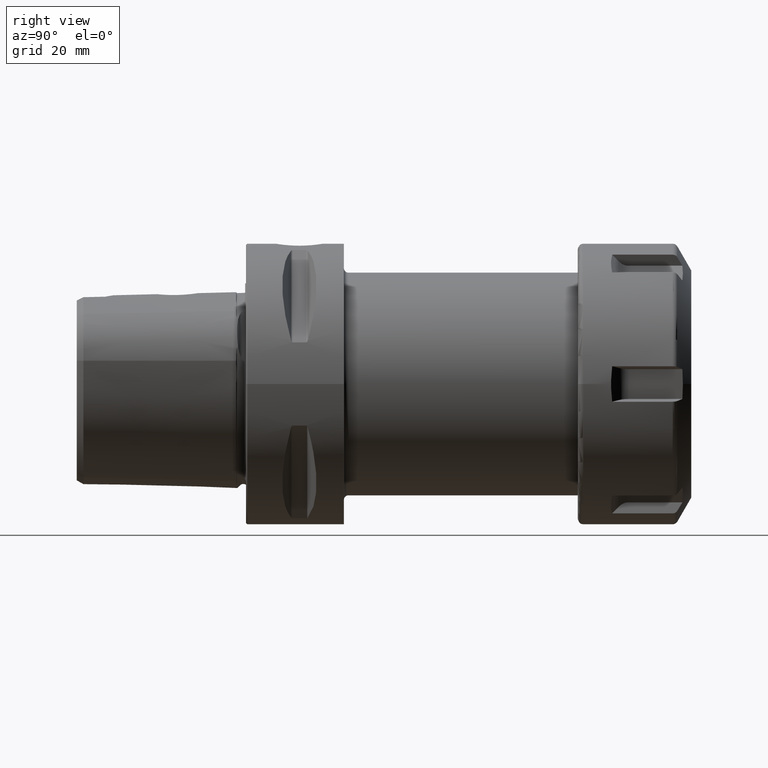
[diagram: clean part render]
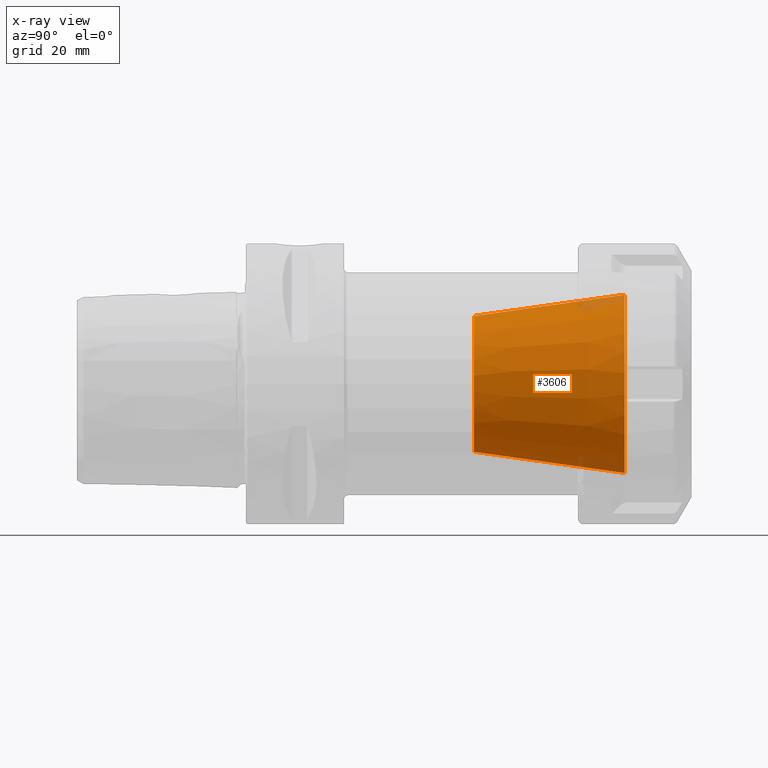
[diagram: x-ray — body ghosted, one internal face saturated and labeled with its STEP entity id]
A machine part, right view, then the same camera in x-ray: the body is ghosted and one INTERNAL B-rep face — a face not visible from any outside direction — is saturated and labeled: STEP entity #3606.
In plain terms, the highlighted conical surface has half-angle 8 deg.
Its self-contained STEP definition (entity closure, byte-faithful):
#1637=CARTESIAN_POINT('',(0.E0,8.5E1,0.E0));
#1638=DIRECTION('',(0.E0,-1.E0,0.E0));
#1639=DIRECTION('',(0.E0,0.E0,-1.E0));
#1640=AXIS2_PLACEMENT_3D('',#1637,#1638,#1639);
#1647=CARTESIAN_POINT('',(0.E0,5.120199381868E1,0.E0));
#1648=DIRECTION('',(0.E0,-1.E0,0.E0));
#1649=DIRECTION('',(0.E0,0.E0,-1.E0));
#1650=AXIS2_PLACEMENT_3D('',#1647,#1648,#1649);
#1652=DIRECTION('',(0.E0,9.902680687416E-1,-1.391731009601E-1));
#1653=VECTOR('',#1652,3.413015853806E1);
#1654=CARTESIAN_POINT('',(0.E0,5.120199381868E1,-1.525E1));
#1655=LINE('',#1654,#1653);
#1661=DIRECTION('',(0.E0,9.902680687416E-1,1.391731009601E-1));
#1662=VECTOR('',#1661,3.413015853806E1);
#1663=CARTESIAN_POINT('',(0.E0,5.120199381868E1,1.525E1));
#1664=LINE('',#1663,#1662);
#2067=CARTESIAN_POINT('',(0.E0,5.120199381868E1,-1.525E1));
#2069=VERTEX_POINT('',#2067);
#2071=CARTESIAN_POINT('',(0.E0,5.120199381868E1,1.525E1));
#2073=VERTEX_POINT('',#2071);
#2074=CARTESIAN_POINT('',(0.E0,8.5E1,-2.E1));
#2075=CARTESIAN_POINT('',(0.E0,8.5E1,2.E1));
#2076=VERTEX_POINT('',#2074);
#2077=VERTEX_POINT('',#2075);
#3592=CARTESIAN_POINT('',(0.E0,6.810099690934E1,0.E0));
#3593=DIRECTION('',(0.E0,1.E0,0.E0));
#3594=DIRECTION('',(0.E0,0.E0,-1.E0));
#3595=AXIS2_PLACEMENT_3D('',#3592,#3593,#3594);
#3596=CONICAL_SURFACE('',#3595,1.7625E1,8.E0);
#3597=ORIENTED_EDGE('',*,*,#3585,.T.);
#3599=ORIENTED_EDGE('',*,*,#3598,.F.);
#3601=ORIENTED_EDGE('',*,*,#3600,.F.);
#3603=ORIENTED_EDGE('',*,*,#3602,.T.);
#3604=EDGE_LOOP('',(#3597,#3599,#3601,#3603));
#3605=FACE_OUTER_BOUND('',#3604,.F.);
#3606=ADVANCED_FACE('',(#3605),#3596,.F.);
#1641=CIRCLE('',#1640,2.E1);
#1651=CIRCLE('',#1650,1.525E1);
#3585=EDGE_CURVE('',#2076,#2077,#1641,.T.);
#3598=EDGE_CURVE('',#2073,#2077,#1664,.T.);
#3600=EDGE_CURVE('',#2069,#2073,#1651,.T.);
#3602=EDGE_CURVE('',#2069,#2076,#1655,.T.);